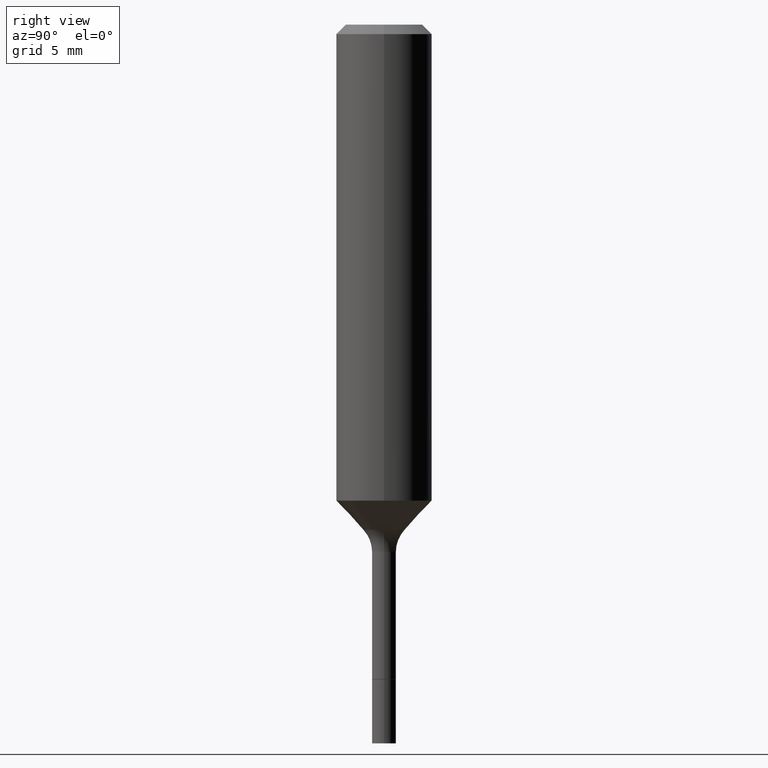
[diagram: clean part render]
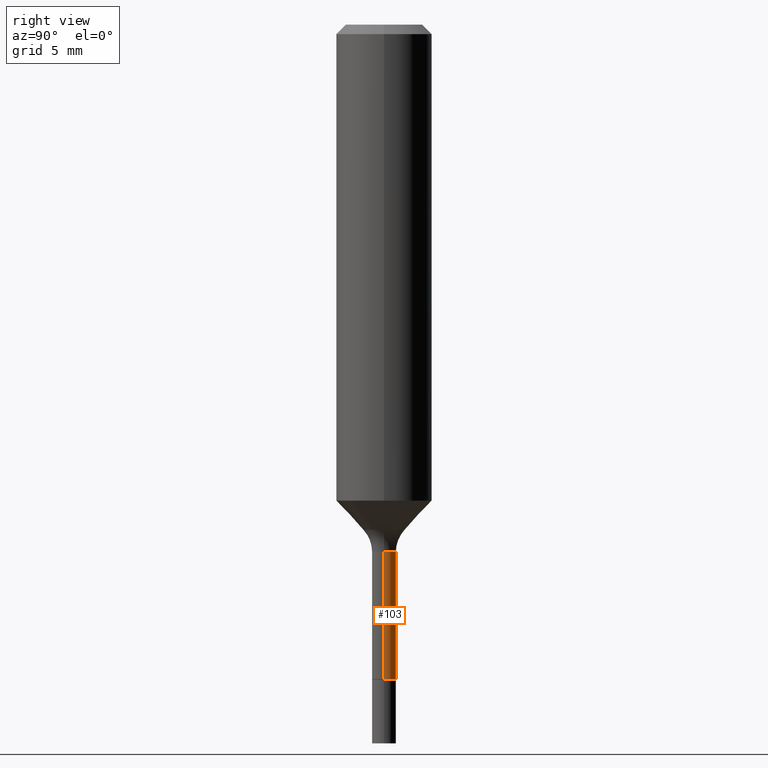
[diagram: same view with one face highlighted and labeled with its STEP entity id]
A machine part, right view. The second image highlights one B-rep face of the part: STEP entity #103.
In plain terms, the highlighted cylindrical surface (edge-blend (fillet) strip) has radius 0.7506 mm, axis along (-0, 0, 1).
Its self-contained STEP definition (entity closure, byte-faithful):
#3 = ORIENTED_EDGE ( 'NONE', *, *, #465, .F. ) ;
#33 = EDGE_CURVE ( 'NONE', #189, #188, #328, .T. ) ;
#53 = DIRECTION ( 'NONE',  ( 1.000000000000000000, -6.982962677686267499E-15, 4.876176775795936353E-29 ) ) ;
#77 = CARTESIAN_POINT ( 'NONE',  ( 0.02954999999999973967, -2.063465471256273918E-16, 1.440910237247686459E-30 ) ) ;
#80 = DIRECTION ( 'NONE',  ( -2.445468806185136597E-29, 3.491481338843145583E-15, 1.000000000000000000 ) ) ;
#81 = AXIS2_PLACEMENT_3D ( 'NONE', #82, #138, #53 ) ;
#82 = CARTESIAN_POINT ( 'NONE',  ( 0.000000000000000000, 0.000000000000000000, 0.000000000000000000 ) ) ;
#103 = ADVANCED_FACE ( 'NONE', ( #496 ), #240, .T. ) ;
#107 = EDGE_LOOP ( 'NONE', ( #296, #508, #3, #223 ) ) ;
#109 = AXIS2_PLACEMENT_3D ( 'NONE', #437, #80, #444 ) ;
#113 = DIRECTION ( 'NONE',  ( 1.000000000000000000, -6.982962677686269077E-15, 0.000000000000000000 ) ) ;
#138 = DIRECTION ( 'NONE',  ( -2.445468806185136597E-29, 3.491481338843145583E-15, 1.000000000000000000 ) ) ;
#147 = CARTESIAN_POINT ( 'NONE',  ( 0.02954999999999992355, -4.744224843220065059E-15, -1.299700000000000077 ) ) ;
#188 = VERTEX_POINT ( 'NONE', #507 ) ;
#189 = VERTEX_POINT ( 'NONE', #198 ) ;
#190 = EDGE_CURVE ( 'NONE', #188, #234, #354, .T. ) ;
#193 = DIRECTION ( 'NONE',  ( -2.445468806185136597E-29, 3.491481338843145583E-15, 1.000000000000000000 ) ) ;
#198 = CARTESIAN_POINT ( 'NONE',  ( 0.02954999999999955232, -5.838804242947389606E-15, -1.613200000000000189 ) ) ;
#223 = ORIENTED_EDGE ( 'NONE', *, *, #459, .F. ) ;
#228 = DIRECTION ( 'NONE',  ( -2.445468806185136877E-29, 3.491481338843145188E-15, 1.000000000000000000 ) ) ;
#230 = VECTOR ( 'NONE', #228, 39.37007874015748143 ) ;
#234 = VERTEX_POINT ( 'NONE', #363 ) ;
#240 = CYLINDRICAL_SURFACE ( 'NONE', #81, 0.02954999999999973967 ) ;
#241 = CIRCLE ( 'NONE', #109, 0.02954999999999992355 ) ;
#296 = ORIENTED_EDGE ( 'NONE', *, *, #33, .T. ) ;
#303 = CARTESIAN_POINT ( 'NONE',  ( 3.945030278137862348E-29, -5.632457695821763151E-15, -1.613200000000000189 ) ) ;
#311 = AXIS2_PLACEMENT_3D ( 'NONE', #303, #193, #113 ) ;
#320 = CARTESIAN_POINT ( 'NONE',  ( -0.02954999999999973967, 2.099653784171077552E-16, -1.453545319170311939E-30 ) ) ;
#328 = CIRCLE ( 'NONE', #311, 0.02954999999999955232 ) ;
#354 = LINE ( 'NONE', #320, #230 ) ;
#363 = CARTESIAN_POINT ( 'NONE',  ( -0.02954999999999992355, -4.875202617540993886E-15, -1.299700000000000077 ) ) ;
#375 = VERTEX_POINT ( 'NONE', #147 ) ;
#388 = LINE ( 'NONE', #77, #458 ) ;
#437 = CARTESIAN_POINT ( 'NONE',  ( 3.178375807398822119E-29, -4.537878296094436237E-15, -1.299700000000000077 ) ) ;
#444 = DIRECTION ( 'NONE',  ( 1.000000000000000000, -6.982962677686280121E-15, 0.000000000000000000 ) ) ;
#458 = VECTOR ( 'NONE', #518, 39.37007874015748143 ) ;
#459 = EDGE_CURVE ( 'NONE', #189, #375, #388, .T. ) ;
#465 = EDGE_CURVE ( 'NONE', #375, #234, #241, .T. ) ;
#496 = FACE_OUTER_BOUND ( 'NONE', #107, .T. ) ;
#507 = CARTESIAN_POINT ( 'NONE',  ( -0.02954999999999955232, -4.875202617540993886E-15, -1.613200000000000189 ) ) ;
#508 = ORIENTED_EDGE ( 'NONE', *, *, #190, .T. ) ;
#518 = DIRECTION ( 'NONE',  ( -2.445468806185136877E-29, 3.491481338843145188E-15, 1.000000000000000000 ) ) ;